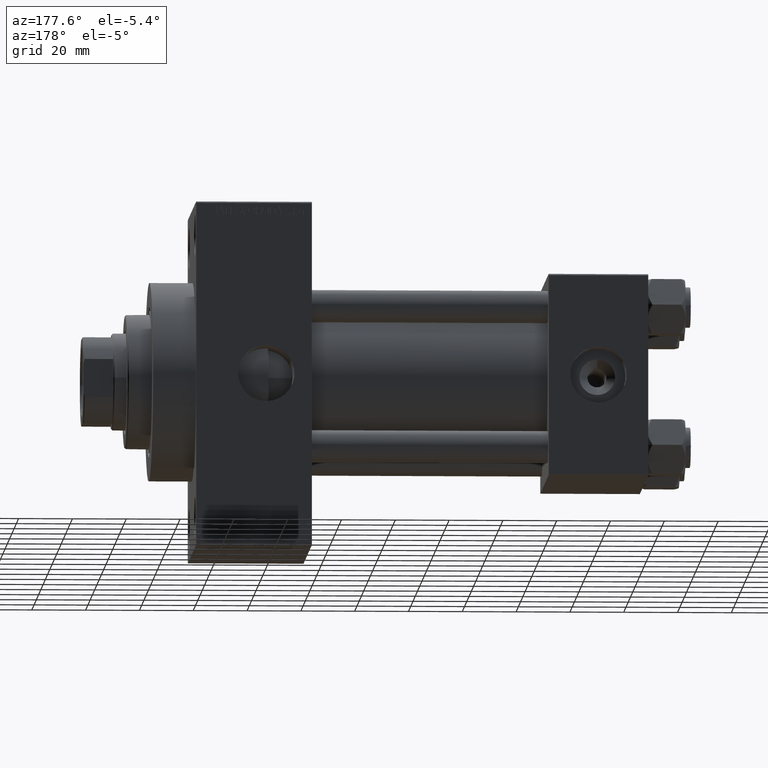
[diagram: clean part render]
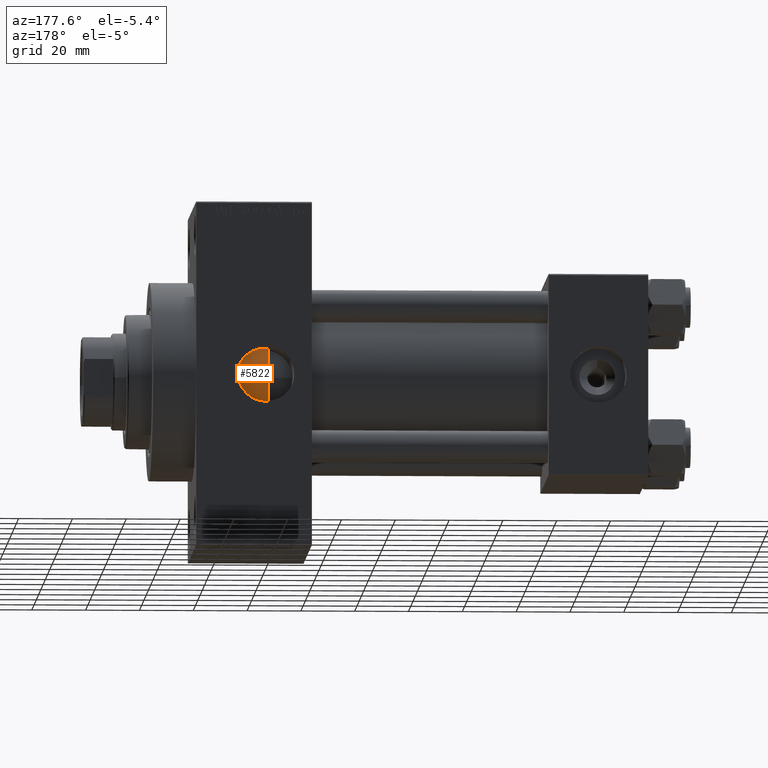
[diagram: same view with one face highlighted and labeled with its STEP entity id]
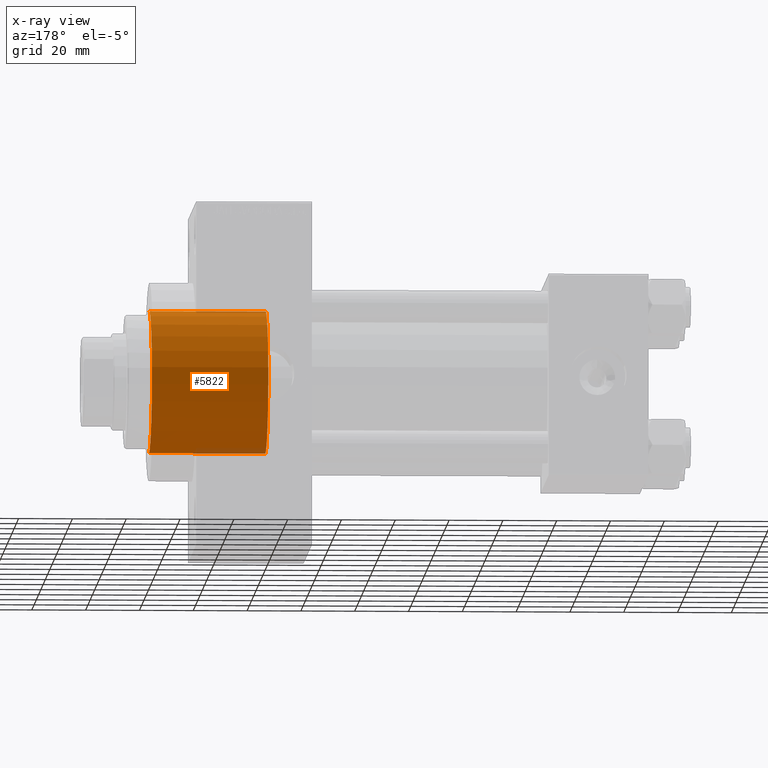
[diagram: x-ray of the same camera — body ghosted, the highlighted face saturated]
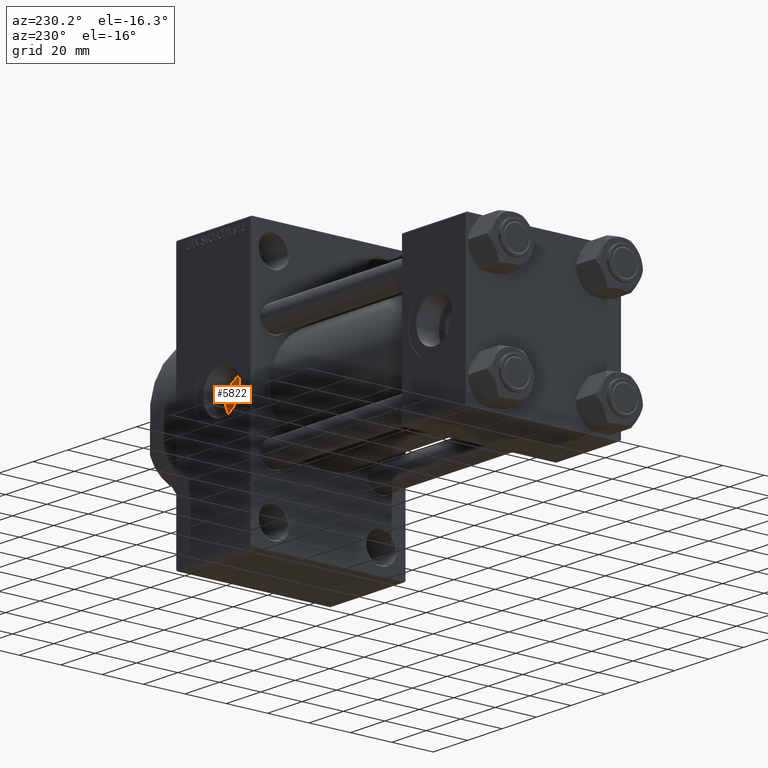
[diagram: same view with one face highlighted and labeled with its STEP entity id]
A machine part, auxiliary view. The second image highlights one B-rep face of the part: STEP entity #5822.
The next image is the same camera in x-ray: the body ghosted, the highlighted face saturated — about 3% of this face is hidden behind the body in this view.
A second angle (auxiliary view) of the same face is appended — the face is thin or edge-on in the first view.
In plain terms, the highlighted cylindrical surface (partial cylindrical patch) has radius 26.5 mm, axis along (-1, 0, 0).
Its self-contained STEP definition (entity closure, byte-faithful):
#507 = FACE_OUTER_BOUND ( 'NONE', #27597, .T. ) ;
#1364 = AXIS2_PLACEMENT_3D ( 'NONE', #31091, #17475, #24534 ) ;
#5467 = ORIENTED_EDGE ( 'NONE', *, *, #39470, .F. ) ;
#5801 = DIRECTION ( 'NONE',  ( 1.000000000000000000, 0.000000000000000000, 0.000000000000000000 ) ) ;
#5822 = ADVANCED_FACE ( 'NONE', ( #507 ), #27319, .T. ) ;
#6399 = EDGE_CURVE ( 'NONE', #8018, #38767, #48536, .T. ) ;
#7369 = VERTEX_POINT ( 'NONE', #14946 ) ;
#8018 = VERTEX_POINT ( 'NONE', #46412 ) ;
#8800 = ORIENTED_EDGE ( 'NONE', *, *, #29212, .F. ) ;
#9098 = VECTOR ( 'NONE', #26677, 1000.000000000000000 ) ;
#9622 = DIRECTION ( 'NONE',  ( 0.000000000000000000, 0.000000000000000000, 1.000000000000000000 ) ) ;
#11572 = CARTESIAN_POINT ( 'NONE',  ( -26.50000000000000355, 0.000000000000000000, 43.25999999999999801 ) ) ;
#11704 = ORIENTED_EDGE ( 'NONE', *, *, #6399, .T. ) ;
#12081 = CARTESIAN_POINT ( 'NONE',  ( 26.50000000000000355, 3.245314017740486554E-15, 0.000000000000000000 ) ) ;
#13314 = AXIS2_PLACEMENT_3D ( 'NONE', #24598, #36129, #5801 ) ;
#14946 = CARTESIAN_POINT ( 'NONE',  ( -26.50000000000000355, 0.000000000000000000, 43.25999999999999801 ) ) ;
#17475 = DIRECTION ( 'NONE',  ( -0.000000000000000000, -0.000000000000000000, -1.000000000000000000 ) ) ;
#20449 = VECTOR ( 'NONE', #49433, 1000.000000000000000 ) ;
#23347 = ORIENTED_EDGE ( 'NONE', *, *, #47551, .T. ) ;
#24534 = DIRECTION ( 'NONE',  ( -1.000000000000000000, 0.000000000000000000, 0.000000000000000000 ) ) ;
#24598 = CARTESIAN_POINT ( 'NONE',  ( 0.000000000000000000, 0.000000000000000000, 0.000000000000000000 ) ) ;
#26677 = DIRECTION ( 'NONE',  ( -0.000000000000000000, -0.000000000000000000, -1.000000000000000000 ) ) ;
#27319 = CYLINDRICAL_SURFACE ( 'NONE', #1364, 26.50000000000000355 ) ;
#27597 = EDGE_LOOP ( 'NONE', ( #8800, #5467, #23347, #11704 ) ) ;
#28205 = VERTEX_POINT ( 'NONE', #31978 ) ;
#28448 = DIRECTION ( 'NONE',  ( 1.000000000000000000, 0.000000000000000000, 0.000000000000000000 ) ) ;
#29212 = EDGE_CURVE ( 'NONE', #28205, #38767, #37209, .T. ) ;
#31091 = CARTESIAN_POINT ( 'NONE',  ( 0.000000000000000000, 0.000000000000000000, 43.25999999999999801 ) ) ;
#31978 = CARTESIAN_POINT ( 'NONE',  ( 26.50000000000000355, 3.245314017740486554E-15, 43.25999999999999801 ) ) ;
#33092 = AXIS2_PLACEMENT_3D ( 'NONE', #43981, #9622, #28448 ) ;
#33215 = CARTESIAN_POINT ( 'NONE',  ( 26.50000000000000355, 3.245314017740486554E-15, 43.25999999999999801 ) ) ;
#36129 = DIRECTION ( 'NONE',  ( 0.000000000000000000, 0.000000000000000000, 1.000000000000000000 ) ) ;
#37209 = LINE ( 'NONE', #33215, #9098 ) ;
#38767 = VERTEX_POINT ( 'NONE', #12081 ) ;
#39470 = EDGE_CURVE ( 'NONE', #7369, #28205, #39510, .T. ) ;
#39510 = CIRCLE ( 'NONE', #33092, 26.50000000000000355 ) ;
#43981 = CARTESIAN_POINT ( 'NONE',  ( 0.000000000000000000, 0.000000000000000000, 43.25999999999999801 ) ) ;
#45925 = LINE ( 'NONE', #11572, #20449 ) ;
#46412 = CARTESIAN_POINT ( 'NONE',  ( -26.50000000000000355, 0.000000000000000000, 0.000000000000000000 ) ) ;
#47551 = EDGE_CURVE ( 'NONE', #7369, #8018, #45925, .T. ) ;
#48536 = CIRCLE ( 'NONE', #13314, 26.50000000000000355 ) ;
#49433 = DIRECTION ( 'NONE',  ( -0.000000000000000000, -0.000000000000000000, -1.000000000000000000 ) ) ;